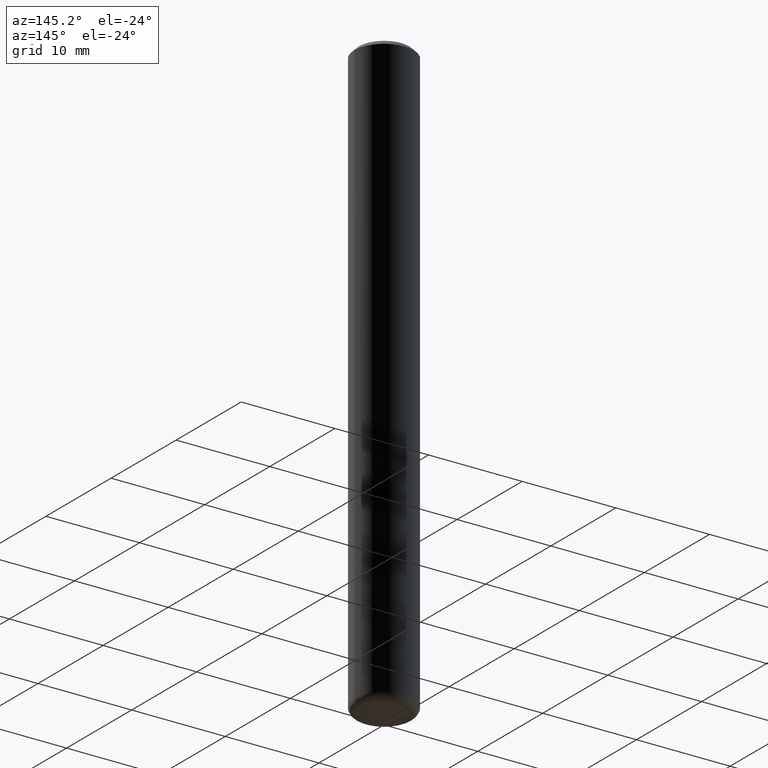
[diagram: clean part render]
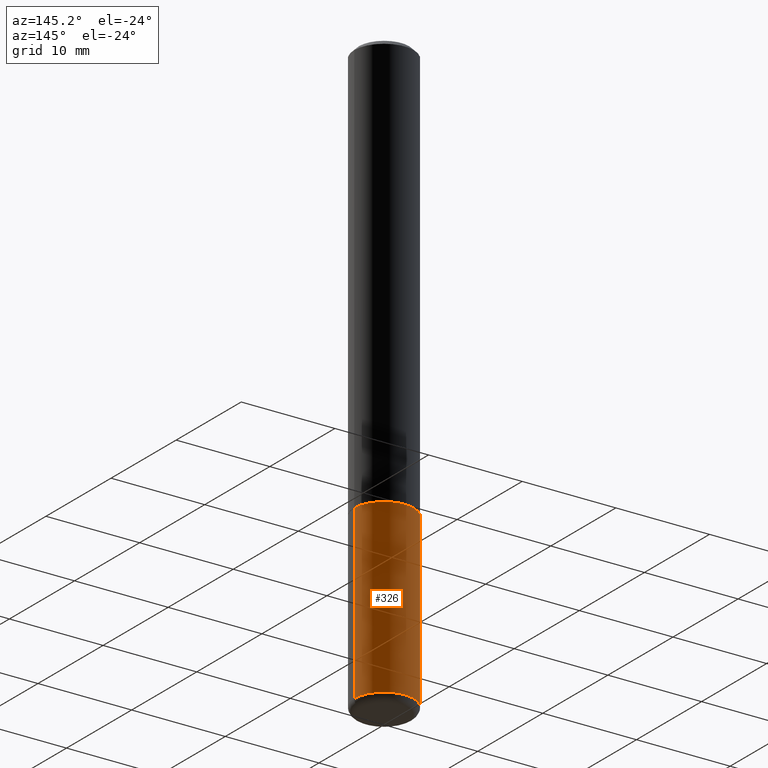
[diagram: same view with one face highlighted and labeled with its STEP entity id]
A machine part, auxiliary view. The second image highlights one B-rep face of the part: STEP entity #326.
In plain terms, the highlighted cylindrical surface (edge-blend (fillet) strip) has radius 3.175 mm, axis along (-0, 0, 1).
Its self-contained STEP definition (entity closure, byte-faithful):
#1 = EDGE_CURVE ( 'NONE', #315, #45, #4, .T. ) ;
#4 = CIRCLE ( 'NONE', #129, 0.1250000000000000000 ) ;
#17 = DIRECTION ( 'NONE',  ( -2.445468806185136597E-29, 3.491481338843145583E-15, 1.000000000000000000 ) ) ;
#23 = CARTESIAN_POINT ( 'NONE',  ( -0.1250000000000000000, -6.478847205258913284E-15, -1.750000000000000222 ) ) ;
#24 = EDGE_LOOP ( 'NONE', ( #366, #342, #114, #339 ) ) ;
#36 = FACE_OUTER_BOUND ( 'NONE', #24, .T. ) ;
#39 = DIRECTION ( 'NONE',  ( 1.000000000000000000, -6.982962677686262766E-15, 0.000000000000000000 ) ) ;
#45 = VERTEX_POINT ( 'NONE', #23 ) ;
#49 = CIRCLE ( 'NONE', #364, 0.1250000000000000000 ) ;
#66 = LINE ( 'NONE', #162, #106 ) ;
#70 = DIRECTION ( 'NONE',  ( -2.445468806185136597E-29, 3.491481338843145583E-15, 1.000000000000000000 ) ) ;
#72 = CARTESIAN_POINT ( 'NONE',  ( 6.040307951277287977E-29, -8.623958906942569995E-15, -2.470000000000000195 ) ) ;
#75 = VERTEX_POINT ( 'NONE', #378 ) ;
#87 = DIRECTION ( 'NONE',  ( -2.445468806185136597E-29, 3.491481338843145583E-15, 1.000000000000000000 ) ) ;
#104 = DIRECTION ( 'NONE',  ( 1.000000000000000000, -6.982962677686266711E-15, 4.876176775795935793E-29 ) ) ;
#106 = VECTOR ( 'NONE', #223, 39.37007874015748143 ) ;
#108 = VERTEX_POINT ( 'NONE', #383 ) ;
#114 = ORIENTED_EDGE ( 'NONE', *, *, #1, .F. ) ;
#123 = LINE ( 'NONE', #320, #161 ) ;
#129 = AXIS2_PLACEMENT_3D ( 'NONE', #199, #17, #39 ) ;
#162 = CARTESIAN_POINT ( 'NONE',  ( 0.1250000000000000000, -8.728703347107833388E-16, 6.095220969744919741E-30 ) ) ;
#161 = VECTOR ( 'NONE', #379, 39.37007874015748143 ) ;
#190 = EDGE_CURVE ( 'NONE', #75, #108, #49, .T. ) ;
#199 = CARTESIAN_POINT ( 'NONE',  ( 4.279570410823989044E-29, -6.110092342975505460E-15, -1.750000000000000222 ) ) ;
#223 = DIRECTION ( 'NONE',  ( -2.445468806185136877E-29, 3.491481338843145188E-15, 1.000000000000000000 ) ) ;
#225 = AXIS2_PLACEMENT_3D ( 'NONE', #385, #87, #104 ) ;
#234 = EDGE_CURVE ( 'NONE', #75, #315, #66, .T. ) ;
#258 = CYLINDRICAL_SURFACE ( 'NONE', #225, 0.1250000000000000000 ) ;
#266 = DIRECTION ( 'NONE',  ( 1.000000000000000000, -6.982962677686270655E-15, 0.000000000000000000 ) ) ;
#315 = VERTEX_POINT ( 'NONE', #330 ) ;
#320 = CARTESIAN_POINT ( 'NONE',  ( -0.1250000000000000000, 8.881784197001252323E-16, -6.148668862818632227E-30 ) ) ;
#326 = ADVANCED_FACE ( 'NONE', ( #36 ), #258, .T. ) ;
#330 = CARTESIAN_POINT ( 'NONE',  ( 0.1250000000000000000, -6.982962677686288010E-15, -1.750000000000000222 ) ) ;
#339 = ORIENTED_EDGE ( 'NONE', *, *, #234, .F. ) ;
#342 = ORIENTED_EDGE ( 'NONE', *, *, #369, .T. ) ;
#364 = AXIS2_PLACEMENT_3D ( 'NONE', #72, #70, #266 ) ;
#366 = ORIENTED_EDGE ( 'NONE', *, *, #190, .T. ) ;
#369 = EDGE_CURVE ( 'NONE', #108, #45, #123, .T. ) ;
#378 = CARTESIAN_POINT ( 'NONE',  ( 0.1249999999999999861, -9.496829241653354912E-15, -2.470000000000000195 ) ) ;
#379 = DIRECTION ( 'NONE',  ( -2.445468806185136877E-29, 3.491481338843145188E-15, 1.000000000000000000 ) ) ;
#383 = CARTESIAN_POINT ( 'NONE',  ( -0.1249999999999999861, -7.735780487242444763E-15, -2.470000000000000195 ) ) ;
#385 = CARTESIAN_POINT ( 'NONE',  ( 0.000000000000000000, 0.000000000000000000, 0.000000000000000000 ) ) ;